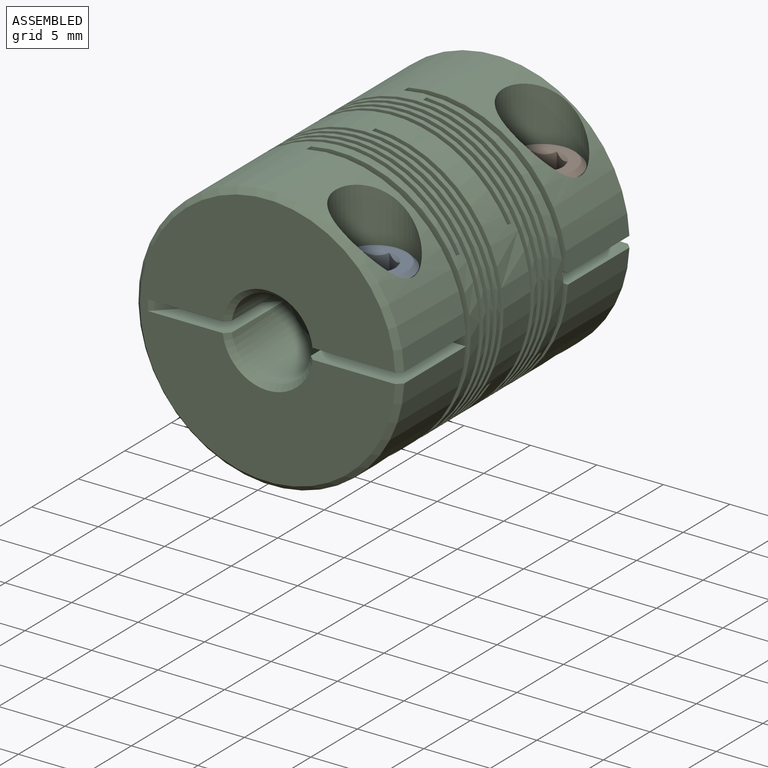
[diagram: assembled view]
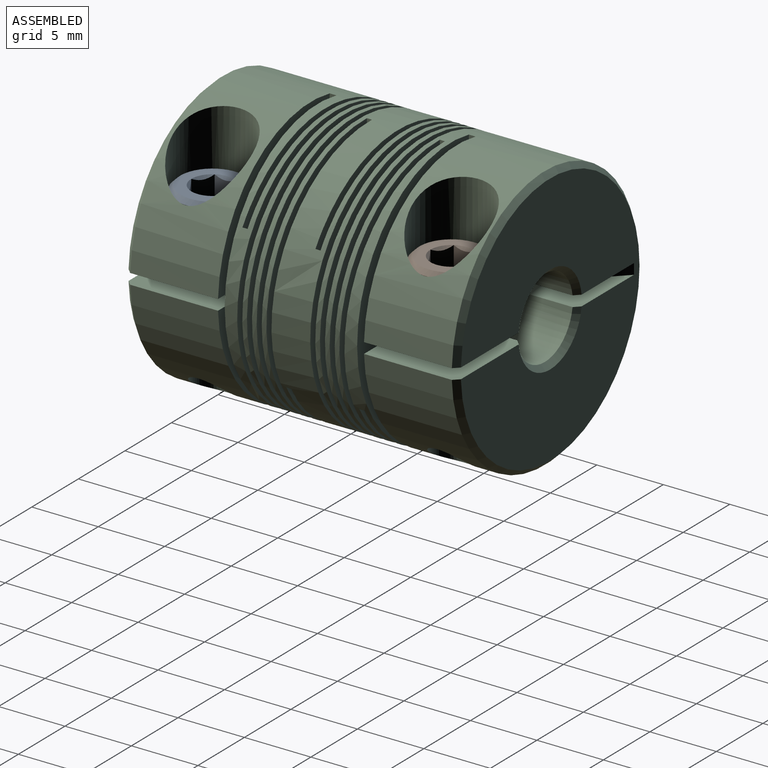
[diagram: assembled view, second angle]
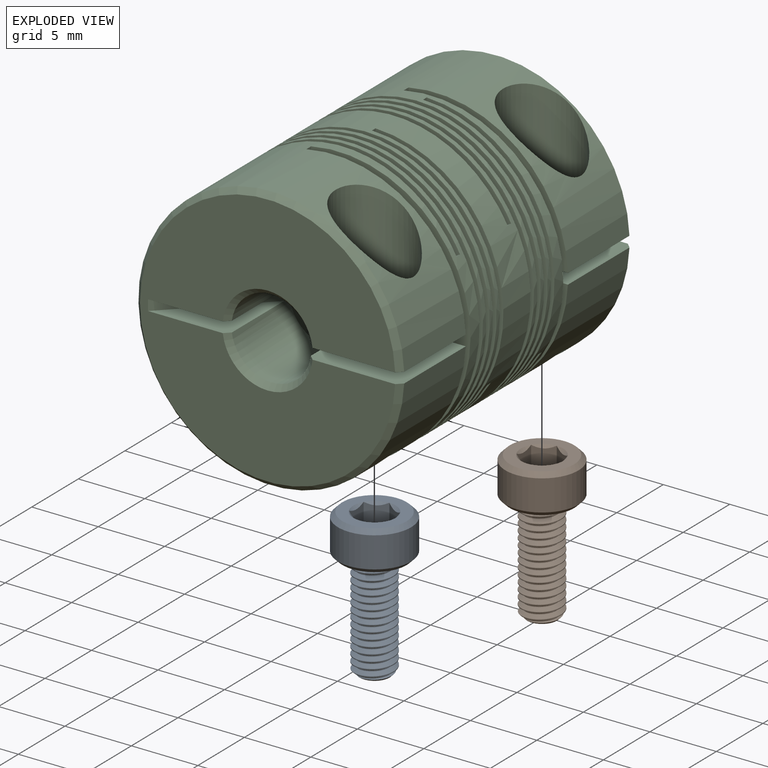
[diagram: exploded view]
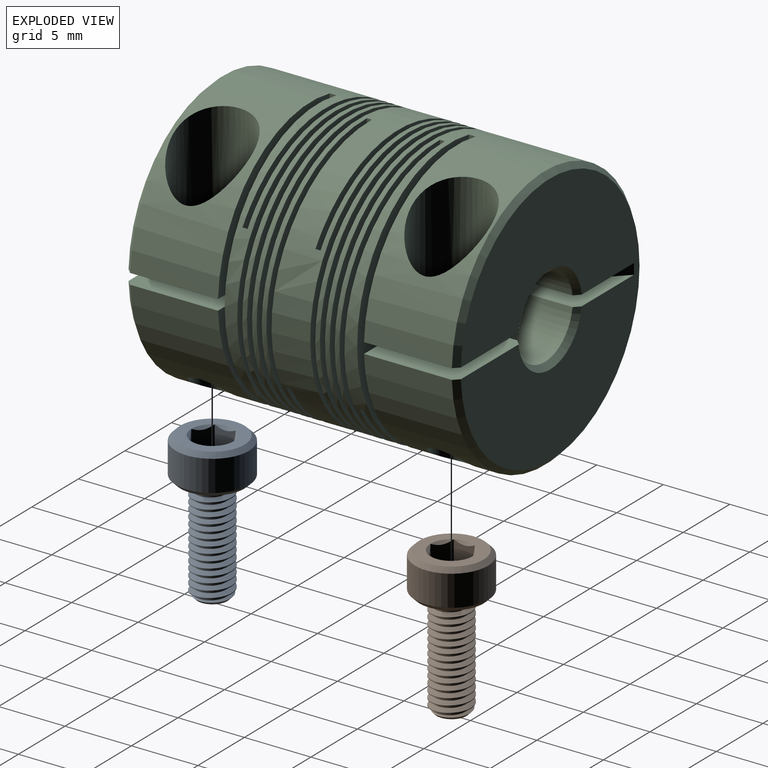
[diagram: exploded view, second angle]
ASSEMBLY  parts=3 mates=4
PART A: 24 faces, bbox 6.1x6.1x11.8 mm
  f0: cylinder r=1.5mm len=7.63mm, axis (0,0,1), area 14.9mm2, adj f1,f4,f5,f23
  f1: cone r=1.5mm half-angle=45deg, axis (0,0,1), area 2.4mm2, adj f0,f2,f3,f4,f23
  f2: bspline ~8.15x2.71mm, area 7.3mm2, adj f1,f4,f5,f23
  f3: plane 2.25x2.25mm, normal (0,0,-1), area 4mm2, adj f1
  f4: bspline ~8.44x3.46mm, area 49.2mm2, adj f0,f1,f2,f5
  f5: plane 5.04x5.04mm, normal (0,0,-1), area 12.7mm2, adj f0,f2,f4,f6,f23
  f6: cone r=2.75mm half-angle=45deg, axis (0,0,1), area 7.6mm2, adj f5,f7
  f7: cylinder r=2.75mm len=5.5mm, axis (0,0,1), area 40.1mm2, adj f6,f8
  f8: cone r=2.42mm half-angle=45deg, axis (0,0,-1), area 7.6mm2, adj f7,f9
  f9: plane 5.1x5.1mm, normal (0,0,1), area 10.5mm2, adj f8,f10,f18,f19,f20,f21,f22
  f10: cone r=1.59mm half-angle=45deg, axis (0,0,1), area 0mm2, adj f9,f11
  f11: plane 2.99x1.98mm, normal (-0.5,-0.87,0), area 3.6mm2, adj f10,f12,f16,f17
  f12: plane 3.18x2.75mm, normal (0,0,1), area 6.5mm2, adj f11,f13,f14,f15,f16,f17
  f13: plane 2.99x2.19mm, normal (1,0,0), area 3.6mm2, adj f12,f15,f16,f19
  f14: plane 2.99x1.98mm, normal (-0.5,0.87,0), area 3.6mm2, adj f12,f15,f17,f21
  f15: plane 2.99x1.98mm, normal (0.5,0.87,0), area 3.6mm2, adj f12,f13,f14,f20
  f16: plane 2.99x1.98mm, normal (0.5,-0.87,0), area 3.6mm2, adj f11,f12,f13,f18
  f17: plane 2.99x2.19mm, normal (-1,0,0), area 3.6mm2, adj f11,f12,f14,f22
  f18: cone r=1.59mm half-angle=45deg, axis (0,0,1), area 0mm2, adj f9,f16
  f19: cone r=1.59mm half-angle=45deg, axis (0,0,1), area 0mm2, adj f9,f13
  f20: cone r=1.59mm half-angle=45deg, axis (0,0,1), area 0mm2, adj f9,f15
  f21: cone r=1.59mm half-angle=45deg, axis (0,0,1), area 0mm2, adj f9,f14
  f22: cone r=1.59mm half-angle=45deg, axis (0,0,1), area 0mm2, adj f9,f17
  f23: bspline ~8.27x3.46mm, area 49.1mm2, adj f0,f1,f2,f5
PART B: 24 faces, bbox 6.1x6.1x11.8 mm
  f0: cylinder r=1.5mm len=7.63mm, axis (0,0,1), area 14.9mm2, adj f1,f4,f5,f23
  f1: cone r=1.5mm half-angle=45deg, axis (0,0,1), area 2.4mm2, adj f0,f2,f3,f4,f23
  f2: bspline ~8.15x2.71mm, area 7.3mm2, adj f1,f4,f5,f23
  f3: plane 2.25x2.25mm, normal (0,0,-1), area 4mm2, adj f1
  f4: bspline ~8.44x3.46mm, area 49.2mm2, adj f0,f1,f2,f5
  f5: plane 5.04x5.04mm, normal (0,0,-1), area 12.7mm2, adj f0,f2,f4,f6,f23
  f6: cone r=2.75mm half-angle=45deg, axis (0,0,1), area 7.6mm2, adj f5,f7
  f7: cylinder r=2.75mm len=5.5mm, axis (0,0,1), area 40.1mm2, adj f6,f8
  f8: cone r=2.42mm half-angle=45deg, axis (0,0,-1), area 7.6mm2, adj f7,f9
  f9: plane 5.1x5.1mm, normal (0,0,1), area 10.5mm2, adj f8,f10,f18,f19,f20,f21,f22
  f10: cone r=1.59mm half-angle=45deg, axis (0,0,1), area 0mm2, adj f9,f11
  f11: plane 2.99x1.98mm, normal (-0.5,-0.87,0), area 3.6mm2, adj f10,f12,f16,f17
  f12: plane 3.18x2.75mm, normal (0,0,1), area 6.5mm2, adj f11,f13,f14,f15,f16,f17
  f13: plane 2.99x2.19mm, normal (1,0,0), area 3.6mm2, adj f12,f15,f16,f19
  f14: plane 2.99x1.98mm, normal (-0.5,0.87,0), area 3.6mm2, adj f12,f15,f17,f21
  f15: plane 2.99x1.98mm, normal (0.5,0.87,0), area 3.6mm2, adj f12,f13,f14,f20
  f16: plane 2.99x1.98mm, normal (0.5,-0.87,0), area 3.6mm2, adj f11,f12,f13,f18
  f17: plane 2.99x2.19mm, normal (-1,0,0), area 3.6mm2, adj f11,f12,f14,f22
  f18: cone r=1.59mm half-angle=45deg, axis (0,0,1), area 0mm2, adj f9,f16
  f19: cone r=1.59mm half-angle=45deg, axis (0,0,1), area 0mm2, adj f9,f13
  f20: cone r=1.59mm half-angle=45deg, axis (0,0,1), area 0mm2, adj f9,f15
  f21: cone r=1.59mm half-angle=45deg, axis (0,0,1), area 0mm2, adj f9,f14
  f22: cone r=1.59mm half-angle=45deg, axis (0,0,1), area 0mm2, adj f9,f17
  f23: bspline ~8.27x3.46mm, area 49.1mm2, adj f0,f1,f2,f5
PART C: 74 faces, bbox 21.1x25.1x21 mm
  f0: plane 5.5x1.4mm, normal (0,-1,0), area 2.3mm2, adj f8,f9,f15,f54
  f1: cylinder r=10mm len=20mm, axis (0,1,0), area 359.2mm2, adj f2,f4,f10,f11,f12,f28,f30,f31
  f2: cylinder r=10mm len=20mm, axis (0,1,0), area 237.5mm2, adj f1,f3,f16,f18,f19,f20,f22,f23
  f3: cylinder r=10mm len=20mm, axis (0,1,0), area 366mm2, adj f2,f5,f7,f8,f9,f17,f18,f19
  f4: cylinder r=10mm len=11.99mm, axis (0,1,0), area 105.9mm2, adj f1,f57,f60,f63,f73
  f5: cylinder r=10mm len=11.99mm, axis (0,1,0), area 105.9mm2, adj f3,f40,f47,f49,f53
  f6: plane 5.5x1.4mm, normal (0,1,0), area 2.3mm2, adj f11,f12,f13,f70
  f7: plane 20x12mm, normal (0,-1,0), area 171.6mm2, adj f3,f8,f9,f15
  f8: plane 7.56x0.51mm, normal (1,0,0), area 3.8mm2, adj f0,f3,f7,f15,f42
  f9: plane 7.56x0.51mm, normal (1,0,0), area 3.8mm2, adj f0,f3,f7,f15,f40
  f10: plane 20x12mm, normal (0,1,0), area 171.6mm2, adj f1,f11,f12,f13
  f11: plane 7.56x0.51mm, normal (1,0,0), area 3.8mm2, adj f1,f6,f10,f13,f58
  f12: plane 7.56x0.51mm, normal (1,0,0), area 3.8mm2, adj f1,f6,f10,f13,f57
  f13: cylinder r=3mm len=6mm, axis (0,1,0), area 29.3mm2, adj f6,f10,f11,f12,f14,f28,f30,f31
  f14: cylinder r=3mm len=7.31mm, axis (0,1,0), area 71.2mm2, adj f13,f15,f16,f18,f19,f20,f22,f23
  f15: cylinder r=3mm len=6mm, axis (0,1,0), area 27.9mm2, adj f0,f7,f8,f9,f14,f17,f18,f19
  f16: plane 7x0.38mm, normal (1,0,0), area 2.7mm2, adj f2,f14,f18,f19
  f17: plane 7x0.38mm, normal (1,0,0), area 2.7mm2, adj f3,f15,f18,f19
  f18: bspline ~21.03x20mm, area 429.5mm2, adj f2,f3,f14,f15,f16,f17
  f19: bspline ~21.03x20mm, area 429.5mm2, adj f2,f3,f14,f15,f16,f17
  f20: plane 6.06x3.5mm, normal (-0.5,0,-0.87), area 2.7mm2, adj f2,f14,f22,f23
  f21: plane 6.06x3.5mm, normal (-0.5,0,-0.87), area 2.7mm2, adj f3,f15,f22,f23
  f22: bspline ~20.91x20.57mm, area 429.4mm2, adj f2,f3,f14,f15,f20,f21
  f23: bspline ~20.91x20.57mm, area 429.6mm2, adj f2,f3,f14,f15,f20,f21
  f24: plane 6.06x3.5mm, normal (-0.5,0,0.87), area 2.7mm2, adj f2,f14,f26,f27
  f25: plane 6.06x3.5mm, normal (-0.5,0,0.87), area 2.7mm2, adj f3,f15,f26,f27
  f26: bspline ~20.91x20.57mm, area 429.5mm2, adj f2,f3,f14,f15,f24,f25
  f27: bspline ~20.91x20.57mm, area 429.5mm2, adj f2,f3,f14,f15,f24,f25
  f28: plane 7x0.38mm, normal (1,0,0), area 2.7mm2, adj f1,f13,f30,f31
  f29: plane 7x0.38mm, normal (1,0,0), area 2.7mm2, adj f2,f14,f30,f31
  f30: bspline ~21.03x20mm, area 429.5mm2, adj f1,f2,f13,f14,f28,f29
  f31: bspline ~21.03x20mm, area 429.5mm2, adj f1,f2,f13,f14,f28,f29
  f32: plane 6.06x3.5mm, normal (-0.5,0,-0.87), area 2.7mm2, adj f1,f13,f34,f35
  f33: plane 6.06x3.5mm, normal (-0.5,0,-0.87), area 2.7mm2, adj f2,f14,f34,f35
  f34: bspline ~20.91x20.57mm, area 429.4mm2, adj f1,f2,f13,f14,f32,f33
  f35: bspline ~20.91x20.57mm, area 429.6mm2, adj f1,f2,f13,f14,f32,f33
  f36: plane 6.06x3.5mm, normal (-0.5,0,0.87), area 2.7mm2, adj f1,f13,f38,f39
  f37: plane 6.06x3.5mm, normal (-0.5,0,0.87), area 2.7mm2, adj f2,f14,f38,f39
  f38: bspline ~20.91x20.57mm, area 429.5mm2, adj f1,f2,f13,f14,f36,f37
  f39: bspline ~20.91x20.57mm, area 429.5mm2, adj f1,f2,f13,f14,f36,f37
  f40: plane 11.99x9.6mm, normal (0,1,0), area 80.3mm2, adj f5,f9,f47,f54
  f41: plane 19.2x19.19mm, normal (0,-1,0), area 243.8mm2, adj f43,f44,f45,f46,f47,f53,f55,f56
  f42: plane 11.99x9.6mm, normal (0,1,0), area 80.3mm2, adj f3,f8,f44,f54
  f43: plane 6.08x6.08mm, normal (0.71,-0.71,0), area 6.8mm2, adj f41,f45,f46,f52
  f44: plane 7.02x7.01mm, normal (0,0,-1), area 41.9mm2, adj f3,f41,f42,f48,f52,f53,f54,f55
  f45: plane 6.03x6.03mm, normal (0,0,-1), area 18.1mm2, adj f41,f43,f52,f55
  f46: plane 6.03x6.03mm, normal (0,0,1), area 18.1mm2, adj f41,f43,f52,f56
  f47: plane 7.02x7.01mm, normal (0,0,1), area 41.9mm2, adj f5,f40,f41,f49,f52,f53,f54,f56
  f48: cylinder r=1.5mm len=3mm, axis (0,0,1), area 20.2mm2, adj f44,f50
  f49: cylinder r=1.5mm len=8.73mm, axis (0,0,1), area 73.4mm2, adj f5,f47
  f50: plane 5.83x5.83mm, normal (0,0,1), area 19.6mm2, adj f48,f51
  f51: cylinder r=2.92mm len=7.1mm, axis (0,0,-1), area 97.9mm2, adj f3,f50
  f52: cylinder r=3mm len=6.21mm, axis (0,1,0), area 107.6mm2, adj f43,f44,f45,f46,f47,f54,f55,f56
  f53: cone r=9.6mm half-angle=45deg, axis (0,1,0), area 34.4mm2, adj f3,f5,f41,f44,f47
  f54: cone r=3mm half-angle=45deg, axis (0,1,0), area 10.9mm2, adj f0,f40,f42,f44,f47,f52
  f55: cone r=3mm half-angle=45deg, axis (0,-1,0), area 5.2mm2, adj f41,f44,f45,f52
  f56: cone r=3mm half-angle=45deg, axis (0,-1,0), area 5.2mm2, adj f41,f46,f47,f52
  f57: plane 11.99x9.6mm, normal (0,-1,0), area 80.3mm2, adj f4,f12,f60,f70
  f58: plane 11.99x9.6mm, normal (0,-1,0), area 80.3mm2, adj f1,f11,f67,f70
  f59: plane 6.03x6.03mm, normal (0,0,-1), area 18.1mm2, adj f62,f66,f69,f71
  f60: plane 7.02x7.01mm, normal (0,0,1), area 41.9mm2, adj f4,f57,f62,f63,f69,f70,f72,f73
  f61: cylinder r=1.5mm len=3mm, axis (0,0,1), area 20.2mm2, adj f64,f67
  f62: plane 19.2x19.19mm, normal (0,1,0), area 243.8mm2, adj f59,f60,f66,f67,f68,f71,f72,f73
  f63: cylinder r=1.5mm len=8.73mm, axis (0,0,1), area 73.4mm2, adj f4,f60
  f64: plane 5.83x5.83mm, normal (0,0,1), area 19.6mm2, adj f61,f65
  f65: cylinder r=2.92mm len=7.1mm, axis (0,0,-1), area 97.9mm2, adj f1,f64
  f66: plane 6.08x6.08mm, normal (0.71,0.71,0), area 6.8mm2, adj f59,f62,f68,f69
  f67: plane 7.02x7.01mm, normal (0,0,-1), area 41.9mm2, adj f1,f58,f61,f62,f69,f70,f71,f73
  f68: plane 6.03x6.03mm, normal (0,0,1), area 18.1mm2, adj f62,f66,f69,f72
  f69: cylinder r=3mm len=6.21mm, axis (0,-1,0), area 107.6mm2, adj f59,f60,f66,f67,f68,f70,f71,f72
  f70: cone r=3.4mm half-angle=45deg, axis (0,-1,0), area 10.9mm2, adj f6,f57,f58,f60,f67,f69
  f71: cone r=3.4mm half-angle=45deg, axis (0,1,0), area 5.2mm2, adj f59,f62,f67,f69
  f72: cone r=3.4mm half-angle=45deg, axis (0,1,0), area 5.2mm2, adj f60,f62,f68,f69
  f73: cone r=10mm half-angle=45deg, axis (0,-1,0), area 34.4mm2, adj f1,f4,f60,f62,f67
PLACE A at identity
PLACE B at identity
PLACE C at identity fixed
MATE planar C.f48 <-> A.f5  axis (0,0,1) through (5.59,-8.99,2.54)mm
MATE planar B.f1 <-> C.f61  axis (0,0,-1) through (5.59,8.99,2.54)mm
MATE cylindrical B.f1 <-> C.f61  axis (0,0,1) through (5.59,8.99,2.87)mm
MATE cylindrical C.f48 <-> A.f1  axis (0,0,-1) through (5.59,-8.99,9.68)mm
